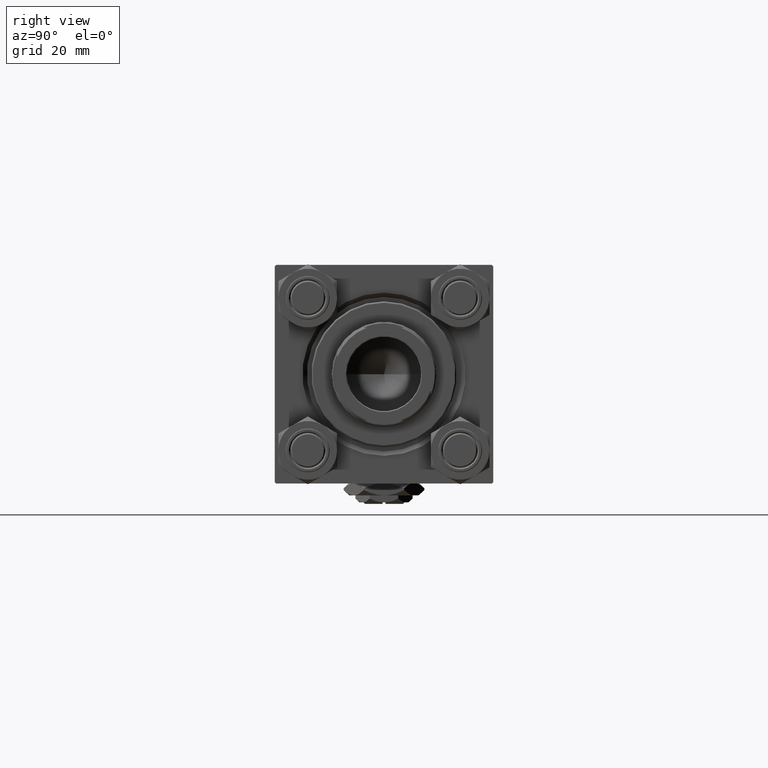
[diagram: clean part render]
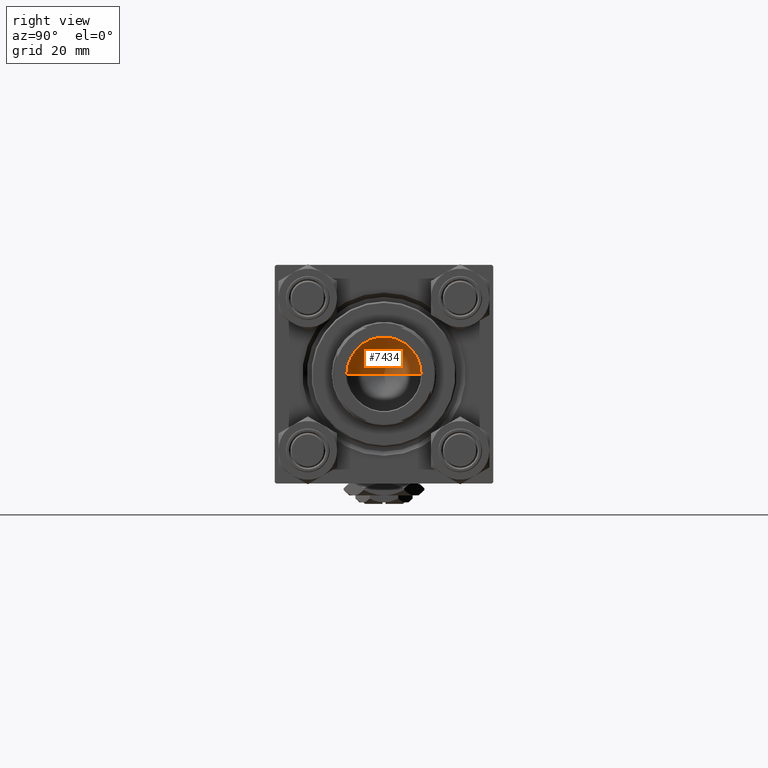
[diagram: same view with one face highlighted and labeled with its STEP entity id]
A machine part, right view. The second image highlights one B-rep face of the part: STEP entity #7434.
In plain terms, the highlighted conical surface has half-angle 59 deg.
Its self-contained STEP definition (entity closure, byte-faithful):
#3594 = EDGE_CURVE ( 'NONE', #18742, #25828, #13811, .T. ) ;
#3906 = LINE ( 'NONE', #43192, #5506 ) ;
#5133 = ORIENTED_EDGE ( 'NONE', *, *, #26882, .T. ) ;
#5470 = CARTESIAN_POINT ( 'NONE',  ( -12.74999999999998934, 1.561424668912873928E-15, 97.00000000000001421 ) ) ;
#5506 = VECTOR ( 'NONE', #16725, 1000.000000000000000 ) ;
#7434 = ADVANCED_FACE ( 'NONE', ( #47735 ), #23000, .F. ) ;
#9793 = EDGE_CURVE ( 'NONE', #48759, #25828, #3906, .T. ) ;
#11119 = DIRECTION ( 'NONE',  ( 1.000000000000000000, 0.000000000000000000, 0.000000000000000000 ) ) ;
#11630 = DIRECTION ( 'NONE',  ( -0.000000000000000000, -0.000000000000000000, 1.000000000000000000 ) ) ;
#12311 = DIRECTION ( 'NONE',  ( -0.000000000000000000, -0.000000000000000000, 1.000000000000000000 ) ) ;
#12460 = LINE ( 'NONE', #28419, #46748 ) ;
#13811 = CIRCLE ( 'NONE', #50594, 12.74999999999998934 ) ;
#16725 = DIRECTION ( 'NONE',  ( 0.8571673007021117785, 0.000000000000000000, 0.5150380749100550437 ) ) ;
#17585 = CARTESIAN_POINT ( 'NONE',  ( -1.410643066818227497E-14, 0.000000000000000000, 89.33902710739862130 ) ) ;
#18742 = VERTEX_POINT ( 'NONE', #5470 ) ;
#23000 = CONICAL_SURFACE ( 'NONE', #48073, 12.74999999999998934, 1.029744258676653423 ) ;
#24351 = DIRECTION ( 'NONE',  ( 1.000000000000000000, 0.000000000000000000, 0.000000000000000000 ) ) ;
#25828 = VERTEX_POINT ( 'NONE', #44740 ) ;
#26882 = EDGE_CURVE ( 'NONE', #48759, #18742, #12460, .T. ) ;
#28419 = CARTESIAN_POINT ( 'NONE',  ( -12.74999999999998934, 1.561424668912873928E-15, 97.00000000000001421 ) ) ;
#31767 = CARTESIAN_POINT ( 'NONE',  ( 0.000000000000000000, 0.000000000000000000, 97.00000000000001421 ) ) ;
#36943 = ORIENTED_EDGE ( 'NONE', *, *, #9793, .F. ) ;
#36966 = EDGE_LOOP ( 'NONE', ( #36943, #5133, #39065 ) ) ;
#39065 = ORIENTED_EDGE ( 'NONE', *, *, #3594, .T. ) ;
#43192 = CARTESIAN_POINT ( 'NONE',  ( 12.74999999999998934, 0.000000000000000000, 97.00000000000001421 ) ) ;
#44740 = CARTESIAN_POINT ( 'NONE',  ( 12.74999999999998934, 0.000000000000000000, 97.00000000000001421 ) ) ;
#46748 = VECTOR ( 'NONE', #48065, 1000.000000000000000 ) ;
#47735 = FACE_OUTER_BOUND ( 'NONE', #36966, .T. ) ;
#48065 = DIRECTION ( 'NONE',  ( -0.8571673007021117785, 1.049727191138617956E-16, 0.5150380749100550437 ) ) ;
#48073 = AXIS2_PLACEMENT_3D ( 'NONE', #31767, #11630, #11119 ) ;
#48170 = CARTESIAN_POINT ( 'NONE',  ( 0.000000000000000000, 0.000000000000000000, 97.00000000000001421 ) ) ;
#48759 = VERTEX_POINT ( 'NONE', #17585 ) ;
#50594 = AXIS2_PLACEMENT_3D ( 'NONE', #48170, #12311, #24351 ) ;